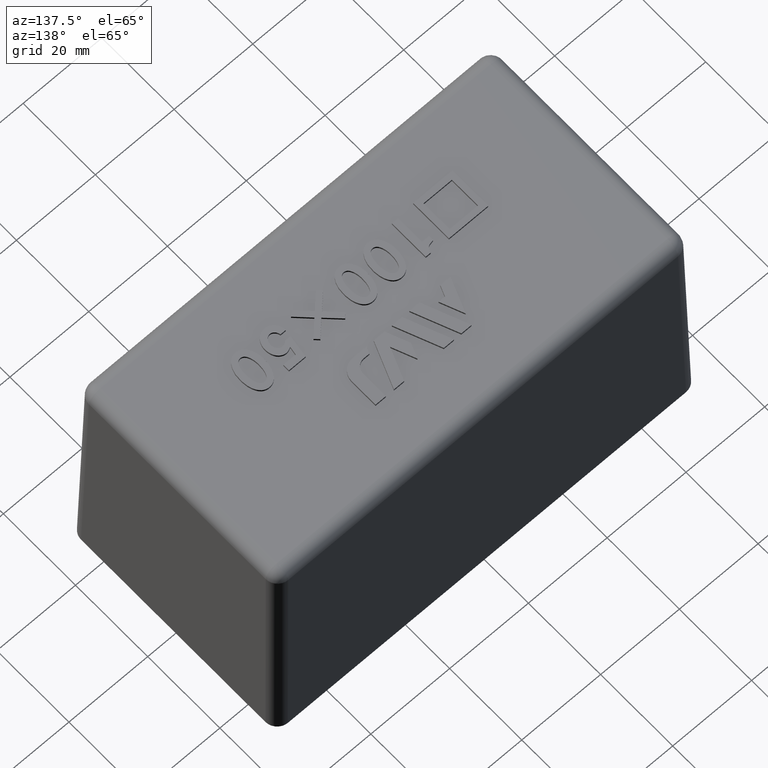
[diagram: clean part render]
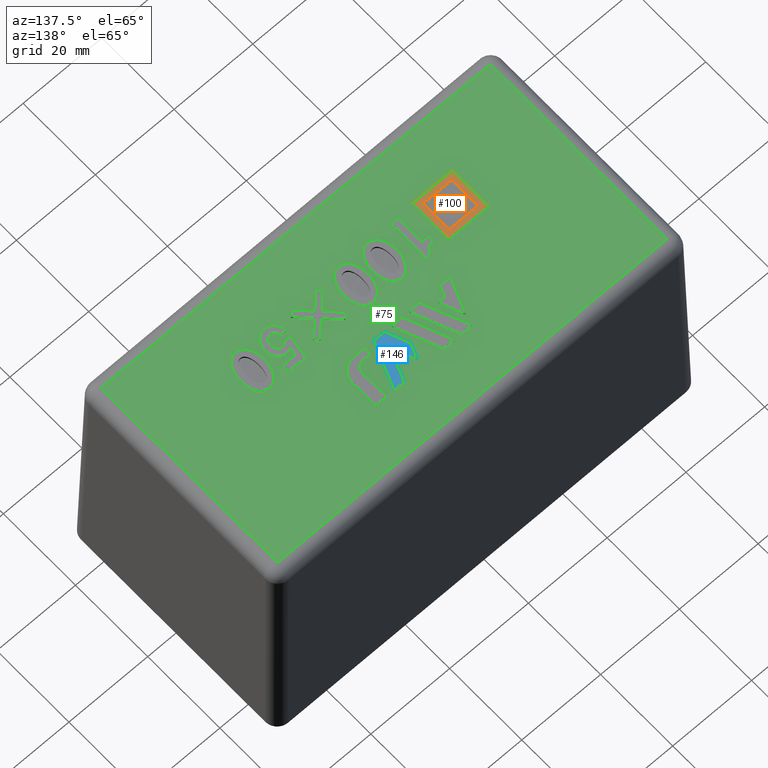
[diagram: same view with three faces highlighted in distinct colors, each labeled with its STEP entity id]
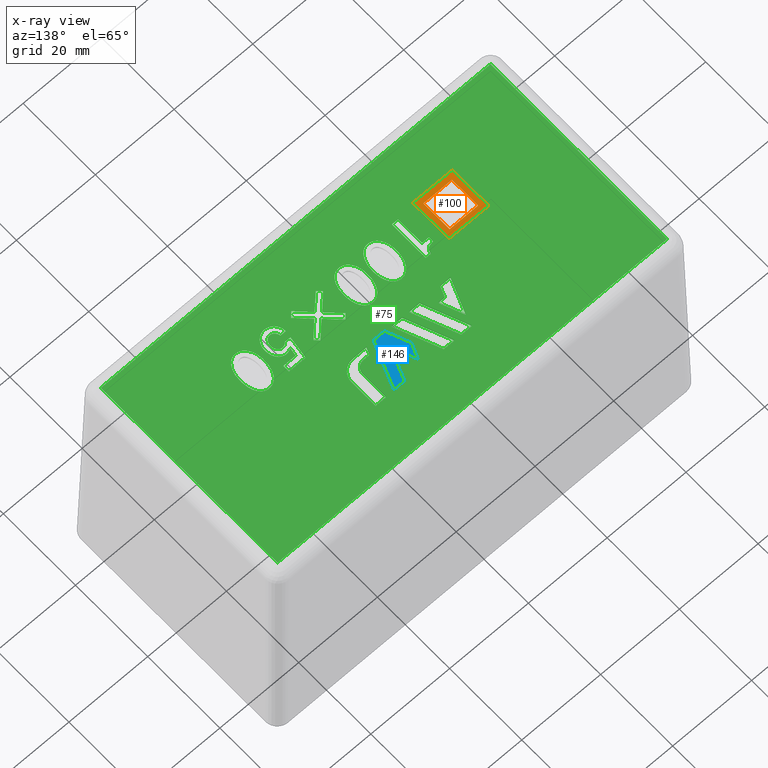
[diagram: x-ray of the same camera — body ghosted, the three highlighted faces saturated]
A machine part, auxiliary view with three faces highlighted in distinct colors.
The next image is the same camera in x-ray (body ghosted, the three faces saturated) — at least one of them is partly hidden behind the body in this view.
Their STEP definitions:

[orange] entity #100 — the highlighted planar face has unit normal (0, 0, 1).
#100 = ADVANCED_FACE( '', ( #259, #260 ), #261, .T. );
#259 = FACE_OUTER_BOUND( '', #518, .T. );
#260 = FACE_BOUND( '', #519, .T. );
#261 = PLANE( '', #520 );
#518 = EDGE_LOOP( '', ( #1037, #1038, #1039, #1040 ) );
#519 = EDGE_LOOP( '', ( #1041, #1042, #1043, #1044 ) );
#520 = AXIS2_PLACEMENT_3D( '', #1045, #1046, #1047 );
#1037 = ORIENTED_EDGE( '', *, *, #1804, .F. );
#1038 = ORIENTED_EDGE( '', *, *, #1805, .F. );
#1039 = ORIENTED_EDGE( '', *, *, #1806, .F. );
#1040 = ORIENTED_EDGE( '', *, *, #1807, .F. );
#1041 = ORIENTED_EDGE( '', *, *, #1808, .F. );
#1042 = ORIENTED_EDGE( '', *, *, #1809, .F. );
#1043 = ORIENTED_EDGE( '', *, *, #1810, .F. );
#1044 = ORIENTED_EDGE( '', *, *, #1811, .F. );
#1045 = CARTESIAN_POINT( '', ( -29.2361505681818, -8.00000000000001, 63.5000000000000 ) );
#1046 = DIRECTION( '', ( 0.000000000000000, 0.000000000000000, 1.00000000000000 ) );
#1047 = DIRECTION( '', ( 0.000000000000000, -1.00000000000000, 0.000000000000000 ) );
#1804 = EDGE_CURVE( '', #2172, #2173, #2174, .T. );
#1805 = EDGE_CURVE( '', #2175, #2172, #2176, .T. );
#1806 = EDGE_CURVE( '', #2177, #2175, #2178, .T. );
#1807 = EDGE_CURVE( '', #2173, #2177, #2179, .T. );
#1808 = EDGE_CURVE( '', #2180, #2181, #2182, .T. );
#1809 = EDGE_CURVE( '', #2183, #2180, #2184, .T. );
#1810 = EDGE_CURVE( '', #2185, #2183, #2186, .T. );
#1811 = EDGE_CURVE( '', #2181, #2185, #2187, .T. );
#2172 = VERTEX_POINT( '', #3003 );
#2173 = VERTEX_POINT( '', #3004 );
#2174 = B_SPLINE_CURVE_WITH_KNOTS( '', 2, ( #3005, #3006, #3007 ), .UNSPECIFIED., .F., .F., ( 3, 3 ), ( 0.000000000000000, 1.00000000000000 ), .UNSPECIFIED. );
#2175 = VERTEX_POINT( '', #3008 );
#2176 = B_SPLINE_CURVE_WITH_KNOTS( '', 2, ( #3009, #3010, #3011 ), .UNSPECIFIED., .F., .F., ( 3, 3 ), ( 3.00000000000000, 4.00000000000000 ), .UNSPECIFIED. );
#2177 = VERTEX_POINT( '', #3012 );
#2178 = B_SPLINE_CURVE_WITH_KNOTS( '', 2, ( #3013, #3014, #3015 ), .UNSPECIFIED., .F., .F., ( 3, 3 ), ( 2.00000000000000, 3.00000000000000 ), .UNSPECIFIED. );
#2179 = B_SPLINE_CURVE_WITH_KNOTS( '', 2, ( #3016, #3017, #3018 ), .UNSPECIFIED., .F., .F., ( 3, 3 ), ( 1.00000000000000, 2.00000000000000 ), .UNSPECIFIED. );
#2180 = VERTEX_POINT( '', #3019 );
#2181 = VERTEX_POINT( '', #3020 );
#2182 = B_SPLINE_CURVE_WITH_KNOTS( '', 2, ( #3021, #3022, #3023 ), .UNSPECIFIED., .F., .F., ( 3, 3 ), ( 0.000000000000000, 1.00000000000000 ), .UNSPECIFIED. );
#2183 = VERTEX_POINT( '', #3024 );
#2184 = B_SPLINE_CURVE_WITH_KNOTS( '', 2, ( #3025, #3026, #3027 ), .UNSPECIFIED., .F., .F., ( 3, 3 ), ( 3.00000000000000, 4.00000000000000 ), .UNSPECIFIED. );
#2185 = VERTEX_POINT( '', #3028 );
#2186 = B_SPLINE_CURVE_WITH_KNOTS( '', 2, ( #3029, #3030, #3031 ), .UNSPECIFIED., .F., .F., ( 3, 3 ), ( 2.00000000000000, 3.00000000000000 ), .UNSPECIFIED. );
#2187 = B_SPLINE_CURVE_WITH_KNOTS( '', 2, ( #3032, #3033, #3034 ), .UNSPECIFIED., .F., .F., ( 3, 3 ), ( 1.00000000000000, 2.00000000000000 ), .UNSPECIFIED. );
#3003 = CARTESIAN_POINT( '', ( -29.2361505681818, -12.9545454545455, 63.5000000000000 ) );
#3004 = CARTESIAN_POINT( '', ( -29.2361505681818, -3.04545454545455, 63.5000000000000 ) );
#3005 = CARTESIAN_POINT( '', ( -29.2361505681818, -12.9545454545455, 63.5000000000000 ) );
#3006 = CARTESIAN_POINT( '', ( -29.2361505681818, -8.00000000000001, 63.5000000000000 ) );
#3007 = CARTESIAN_POINT( '', ( -29.2361505681818, -3.04545454545455, 63.5000000000000 ) );
#3008 = CARTESIAN_POINT( '', ( -19.2816051136364, -12.9545454545455, 63.5000000000000 ) );
#3009 = CARTESIAN_POINT( '', ( -19.2816051136364, -12.9545454545455, 63.5000000000000 ) );
#3010 = CARTESIAN_POINT( '', ( -24.2588778409091, -12.9545454545455, 63.5000000000000 ) );
#3011 = CARTESIAN_POINT( '', ( -29.2361505681818, -12.9545454545455, 63.5000000000000 ) );
#3012 = CARTESIAN_POINT( '', ( -19.2816051136364, -3.04545454545455, 63.5000000000000 ) );
#3013 = CARTESIAN_POINT( '', ( -19.2816051136364, -3.04545454545455, 63.5000000000000 ) );
#3014 = CARTESIAN_POINT( '', ( -19.2816051136364, -8.00000000000001, 63.5000000000000 ) );
#3015 = CARTESIAN_POINT( '', ( -19.2816051136364, -12.9545454545455, 63.5000000000000 ) );
#3016 = CARTESIAN_POINT( '', ( -29.2361505681818, -3.04545454545455, 63.5000000000000 ) );
#3017 = CARTESIAN_POINT( '', ( -24.2588778409091, -3.04545454545455, 63.5000000000000 ) );
#3018 = CARTESIAN_POINT( '', ( -19.2816051136364, -3.04545454545455, 63.5000000000000 ) );
#3019 = CARTESIAN_POINT( '', ( -27.8725142045455, -11.5909090909091, 63.5000000000000 ) );
#3020 = CARTESIAN_POINT( '', ( -20.6452414772727, -11.5909090909091, 63.5000000000000 ) );
#3021 = CARTESIAN_POINT( '', ( -27.8725142045455, -11.5909090909091, 63.5000000000000 ) );
#3022 = CARTESIAN_POINT( '', ( -24.2588778409091, -11.5909090909091, 63.5000000000000 ) );
#3023 = CARTESIAN_POINT( '', ( -20.6452414772727, -11.5909090909091, 63.5000000000000 ) );
#3024 = CARTESIAN_POINT( '', ( -27.8725142045455, -4.36363636363637, 63.5000000000000 ) );
#3025 = CARTESIAN_POINT( '', ( -27.8725142045455, -4.36363636363637, 63.5000000000000 ) );
#3026 = CARTESIAN_POINT( '', ( -27.8725142045455, -7.97727272727274, 63.5000000000000 ) );
#3027 = CARTESIAN_POINT( '', ( -27.8725142045455, -11.5909090909091, 63.5000000000000 ) );
#3028 = CARTESIAN_POINT( '', ( -20.6452414772727, -4.36363636363637, 63.5000000000000 ) );
#3029 = CARTESIAN_POINT( '', ( -20.6452414772727, -4.36363636363637, 63.5000000000000 ) );
#3030 = CARTESIAN_POINT( '', ( -24.2588778409091, -4.36363636363637, 63.5000000000000 ) );
#3031 = CARTESIAN_POINT( '', ( -27.8725142045455, -4.36363636363637, 63.5000000000000 ) );
#3032 = CARTESIAN_POINT( '', ( -20.6452414772727, -11.5909090909091, 63.5000000000000 ) );
#3033 = CARTESIAN_POINT( '', ( -20.6452414772727, -7.97727272727274, 63.5000000000000 ) );
#3034 = CARTESIAN_POINT( '', ( -20.6452414772727, -4.36363636363637, 63.5000000000000 ) );

[blue] entity #146 — the highlighted planar face has unit normal (0, 0, 1).
#146 = ADVANCED_FACE( '', ( #353 ), #354, .T. );
#353 = FACE_OUTER_BOUND( '', #612, .T. );
#354 = PLANE( '', #613 );
#612 = EDGE_LOOP( '', ( #1364, #1365, #1366, #1367, #1368, #1369, #1370 ) );
#613 = AXIS2_PLACEMENT_3D( '', #1371, #1372, #1373 );
#1364 = ORIENTED_EDGE( '', *, *, #1886, .T. );
#1365 = ORIENTED_EDGE( '', *, *, #1887, .T. );
#1366 = ORIENTED_EDGE( '', *, *, #1888, .T. );
#1367 = ORIENTED_EDGE( '', *, *, #1889, .T. );
#1368 = ORIENTED_EDGE( '', *, *, #1890, .T. );
#1369 = ORIENTED_EDGE( '', *, *, #1891, .T. );
#1370 = ORIENTED_EDGE( '', *, *, #1892, .T. );
#1371 = CARTESIAN_POINT( '', ( 353.089384081979, 134.514199886285, 63.4995000000000 ) );
#1372 = DIRECTION( '', ( 0.000000000000000, 6.12303176911189E-017, 1.00000000000000 ) );
#1373 = DIRECTION( '', ( -1.00000000000000, 0.000000000000000, 0.000000000000000 ) );
#1886 = EDGE_CURVE( '', #2295, #2296, #2297, .T. );
#1887 = EDGE_CURVE( '', #2296, #2298, #2299, .T. );
#1888 = EDGE_CURVE( '', #2298, #2300, #2301, .T. );
#1889 = EDGE_CURVE( '', #2300, #2302, #2303, .T. );
#1890 = EDGE_CURVE( '', #2302, #2304, #2305, .T. );
#1891 = EDGE_CURVE( '', #2304, #2306, #2307, .T. );
#1892 = EDGE_CURVE( '', #2306, #2295, #2308, .T. );
#2295 = VERTEX_POINT( '', #3200 );
#2296 = VERTEX_POINT( '', #3201 );
#2297 = LINE( '', #3202, #3203 );
#2298 = VERTEX_POINT( '', #3204 );
#2299 = LINE( '', #3205, #3206 );
#2300 = VERTEX_POINT( '', #3207 );
#2301 = LINE( '', #3208, #3209 );
#2302 = VERTEX_POINT( '', #3210 );
#2303 = LINE( '', #3211, #3212 );
#2304 = VERTEX_POINT( '', #3213 );
#2305 = LINE( '', #3214, #3215 );
#2306 = VERTEX_POINT( '', #3216 );
#2307 = LINE( '', #3217, #3218 );
#2308 = LINE( '', #3219, #3220 );
#3200 = CARTESIAN_POINT( '', ( 5.34956110716499, 2.99499875000001, 63.4995000000000 ) );
#3201 = CARTESIAN_POINT( '', ( 9.39070366533001, 12.9976783770600, 63.4995000000000 ) );
#3202 = CARTESIAN_POINT( '', ( 5.34956110716499, 2.99499875000001, 63.4995000000000 ) );
#3203 = VECTOR( '', #3526, 1000.00000000000 );
#3204 = CARTESIAN_POINT( '', ( 6.80590969755501, 12.9976783770600, 63.4995000000000 ) );
#3205 = CARTESIAN_POINT( '', ( 9.39070366533001, 12.9976783770600, 63.4995000000000 ) );
#3206 = VECTOR( '', #3527, 1000.00000000000 );
#3207 = CARTESIAN_POINT( '', ( 3.98309344144501, 6.01178327344252, 63.4995000000000 ) );
#3208 = CARTESIAN_POINT( '', ( 6.80590969755501, 12.9976783770600, 63.4995000000000 ) );
#3209 = VECTOR( '', #3528, 1000.00000000000 );
#3210 = CARTESIAN_POINT( '', ( 1.85028000433001, 11.2904379717875, 63.4995000000000 ) );
#3211 = CARTESIAN_POINT( '', ( 3.98309344144501, 6.01178327344252, 63.4995000000000 ) );
#3212 = VECTOR( '', #3529, 1000.00000000000 );
#3213 = CARTESIAN_POINT( '', ( 0.557883020442516, 8.09108323719253, 63.4995000000000 ) );
#3214 = CARTESIAN_POINT( '', ( 1.85028000433001, 11.2904379717875, 63.4995000000000 ) );
#3215 = VECTOR( '', #3530, 1000.00000000000 );
#3216 = CARTESIAN_POINT( '', ( 2.61719412142251, 2.99499875000001, 63.4995000000000 ) );
#3217 = CARTESIAN_POINT( '', ( 0.557883020442516, 8.09108323719253, 63.4995000000000 ) );
#3218 = VECTOR( '', #3531, 1000.00000000000 );
#3219 = CARTESIAN_POINT( '', ( 2.61719412142251, 2.99499875000001, 63.4995000000000 ) );
#3220 = VECTOR( '', #3532, 1000.00000000000 );
#3526 = DIRECTION( '', ( 0.374590469627020, 0.927190368837278, -5.67721608440522E-017 ) );
#3527 = DIRECTION( '', ( -1.00000000000000, 0.000000000000000, 0.000000000000000 ) );
#3528 = DIRECTION( '', ( -0.374644407000048, -0.927168575990139, 5.67708264610985E-017 ) );
#3529 = DIRECTION( '', ( -0.374621466961798, 0.927177845125405, -5.67713940131956E-017 ) );
#3530 = DIRECTION( '', ( -0.374550228315492, -0.927206625552694, 5.67731562479017E-017 ) );
#3531 = DIRECTION( '', ( 0.374662791989133, -0.927161146888127, 5.67703715748221E-017 ) );
#3532 = DIRECTION( '', ( 1.00000000000000, 5.55111512312578E-017, -3.39896542528966E-033 ) );

[green] entity #75 — the highlighted planar face has unit normal (0, 0, 1).
#75 = ADVANCED_FACE( '', ( #190, #191, #192, #193, #194, #195, #196, #197, #198, #199, #200, #201, #202 ), #203, .T. );
#190 = FACE_BOUND( '', #441, .T. );
#191 = FACE_BOUND( '', #442, .T. );
#192 = FACE_BOUND( '', #443, .T. );
#193 = FACE_BOUND( '', #444, .T. );
#194 = FACE_BOUND( '', #445, .T. );
#195 = FACE_BOUND( '', #446, .T. );
#196 = FACE_BOUND( '', #447, .T. );
#197 = FACE_BOUND( '', #448, .T. );
#198 = FACE_OUTER_BOUND( '', #449, .T. );
#199 = FACE_BOUND( '', #450, .T. );
#200 = FACE_BOUND( '', #451, .T. );
#201 = FACE_BOUND( '', #452, .T. );
#202 = FACE_BOUND( '', #453, .T. );
#203 = PLANE( '', #454 );
#441 = EDGE_LOOP( '', ( #702, #703, #704, #705, #706 ) );
#442 = EDGE_LOOP( '', ( #707, #708, #709, #710 ) );
#443 = EDGE_LOOP( '', ( #711, #712, #713, #714 ) );
#444 = EDGE_LOOP( '', ( #715, #716, #717, #718, #719, #720, #721 ) );
#445 = EDGE_LOOP( '', ( #722, #723, #724, #725, #726, #727, #728, #729 ) );
#446 = EDGE_LOOP( '', ( #730, #731, #732, #733, #734, #735, #736, #737, #738, #739 ) );
#447 = EDGE_LOOP( '', ( #740 ) );
#448 = EDGE_LOOP( '', ( #741, #742, #743, #744, #745, #746, #747 ) );
#449 = EDGE_LOOP( '', ( #748, #749, #750, #751 ) );
#450 = EDGE_LOOP( '', ( #752, #753, #754, #755 ) );
#451 = EDGE_LOOP( '', ( #756 ) );
#452 = EDGE_LOOP( '', ( #757, #758, #759, #760, #761, #762, #763, #764, #765, #766, #767, #768 ) );
#453 = EDGE_LOOP( '', ( #769 ) );
#454 = AXIS2_PLACEMENT_3D( '', #770, #771, #772 );
#702 = ORIENTED_EDGE( '', *, *, #1686, .F. );
#703 = ORIENTED_EDGE( '', *, *, #1687, .F. );
#704 = ORIENTED_EDGE( '', *, *, #1688, .F. );
#705 = ORIENTED_EDGE( '', *, *, #1689, .F. );
#706 = ORIENTED_EDGE( '', *, *, #1690, .F. );
#707 = ORIENTED_EDGE( '', *, *, #1691, .F. );
#708 = ORIENTED_EDGE( '', *, *, #1692, .F. );
#709 = ORIENTED_EDGE( '', *, *, #1693, .F. );
#710 = ORIENTED_EDGE( '', *, *, #1694, .F. );
#711 = ORIENTED_EDGE( '', *, *, #1695, .F. );
#712 = ORIENTED_EDGE( '', *, *, #1696, .F. );
#713 = ORIENTED_EDGE( '', *, *, #1697, .F. );
#714 = ORIENTED_EDGE( '', *, *, #1698, .F. );
#715 = ORIENTED_EDGE( '', *, *, #1699, .F. );
#716 = ORIENTED_EDGE( '', *, *, #1700, .F. );
#717 = ORIENTED_EDGE( '', *, *, #1701, .F. );
#718 = ORIENTED_EDGE( '', *, *, #1702, .F. );
#719 = ORIENTED_EDGE( '', *, *, #1703, .F. );
#720 = ORIENTED_EDGE( '', *, *, #1704, .F. );
#721 = ORIENTED_EDGE( '', *, *, #1705, .F. );
#722 = ORIENTED_EDGE( '', *, *, #1706, .F. );
#723 = ORIENTED_EDGE( '', *, *, #1707, .F. );
#724 = ORIENTED_EDGE( '', *, *, #1708, .F. );
#725 = ORIENTED_EDGE( '', *, *, #1709, .F. );
#726 = ORIENTED_EDGE( '', *, *, #1710, .F. );
#727 = ORIENTED_EDGE( '', *, *, #1711, .F. );
#728 = ORIENTED_EDGE( '', *, *, #1712, .F. );
#729 = ORIENTED_EDGE( '', *, *, #1713, .F. );
#730 = ORIENTED_EDGE( '', *, *, #1714, .T. );
#731 = ORIENTED_EDGE( '', *, *, #1715, .T. );
#732 = ORIENTED_EDGE( '', *, *, #1716, .T. );
#733 = ORIENTED_EDGE( '', *, *, #1717, .T. );
#734 = ORIENTED_EDGE( '', *, *, #1718, .T. );
#735 = ORIENTED_EDGE( '', *, *, #1719, .T. );
#736 = ORIENTED_EDGE( '', *, *, #1720, .T. );
#737 = ORIENTED_EDGE( '', *, *, #1721, .T. );
#738 = ORIENTED_EDGE( '', *, *, #1722, .T. );
#739 = ORIENTED_EDGE( '', *, *, #1723, .T. );
#740 = ORIENTED_EDGE( '', *, *, #1724, .T. );
#741 = ORIENTED_EDGE( '', *, *, #1725, .T. );
#742 = ORIENTED_EDGE( '', *, *, #1726, .T. );
#743 = ORIENTED_EDGE( '', *, *, #1727, .T. );
#744 = ORIENTED_EDGE( '', *, *, #1728, .T. );
#745 = ORIENTED_EDGE( '', *, *, #1729, .T. );
#746 = ORIENTED_EDGE( '', *, *, #1730, .T. );
#747 = ORIENTED_EDGE( '', *, *, #1731, .T. );
#748 = ORIENTED_EDGE( '', *, *, #1732, .T. );
#749 = ORIENTED_EDGE( '', *, *, #1733, .T. );
#750 = ORIENTED_EDGE( '', *, *, #1734, .T. );
#751 = ORIENTED_EDGE( '', *, *, #1735, .T. );
#752 = ORIENTED_EDGE( '', *, *, #1736, .T. );
#753 = ORIENTED_EDGE( '', *, *, #1737, .T. );
#754 = ORIENTED_EDGE( '', *, *, #1738, .T. );
#755 = ORIENTED_EDGE( '', *, *, #1739, .T. );
#756 = ORIENTED_EDGE( '', *, *, #1740, .T. );
#757 = ORIENTED_EDGE( '', *, *, #1741, .T. );
#758 = ORIENTED_EDGE( '', *, *, #1742, .T. );
#759 = ORIENTED_EDGE( '', *, *, #1743, .T. );
#760 = ORIENTED_EDGE( '', *, *, #1744, .T. );
#761 = ORIENTED_EDGE( '', *, *, #1745, .T. );
#762 = ORIENTED_EDGE( '', *, *, #1746, .T. );
#763 = ORIENTED_EDGE( '', *, *, #1747, .T. );
#764 = ORIENTED_EDGE( '', *, *, #1748, .T. );
#765 = ORIENTED_EDGE( '', *, *, #1749, .T. );
#766 = ORIENTED_EDGE( '', *, *, #1750, .T. );
#767 = ORIENTED_EDGE( '', *, *, #1751, .T. );
#768 = ORIENTED_EDGE( '', *, *, #1752, .T. );
#769 = ORIENTED_EDGE( '', *, *, #1753, .T. );
#770 = CARTESIAN_POINT( '', ( -53.0000000000000, -28.0000000000000, 63.0000000000000 ) );
#771 = DIRECTION( '', ( 0.000000000000000, 0.000000000000000, 1.00000000000000 ) );
#772 = DIRECTION( '', ( 0.000000000000000, -1.00000000000000, 0.000000000000000 ) );
#1686 = EDGE_CURVE( '', #1949, #1950, #1951, .T. );
#1687 = EDGE_CURVE( '', #1952, #1949, #1953, .T. );
#1688 = EDGE_CURVE( '', #1954, #1952, #1955, .T. );
#1689 = EDGE_CURVE( '', #1956, #1954, #1957, .T. );
#1690 = EDGE_CURVE( '', #1950, #1956, #1958, .T. );
#1691 = EDGE_CURVE( '', #1959, #1960, #1961, .T. );
#1692 = EDGE_CURVE( '', #1962, #1959, #1963, .T. );
#1693 = EDGE_CURVE( '', #1964, #1962, #1965, .T. );
#1694 = EDGE_CURVE( '', #1960, #1964, #1966, .T. );
#1695 = EDGE_CURVE( '', #1967, #1968, #1969, .T. );
#1696 = EDGE_CURVE( '', #1970, #1967, #1971, .T. );
#1697 = EDGE_CURVE( '', #1972, #1970, #1973, .T. );
#1698 = EDGE_CURVE( '', #1968, #1972, #1974, .T. );
#1699 = EDGE_CURVE( '', #1975, #1976, #1977, .T. );
#1700 = EDGE_CURVE( '', #1978, #1975, #1979, .T. );
#1701 = EDGE_CURVE( '', #1980, #1978, #1981, .T. );
#1702 = EDGE_CURVE( '', #1982, #1980, #1983, .T. );
#1703 = EDGE_CURVE( '', #1984, #1982, #1985, .T. );
#1704 = EDGE_CURVE( '', #1986, #1984, #1987, .T. );
#1705 = EDGE_CURVE( '', #1976, #1986, #1988, .T. );
#1706 = EDGE_CURVE( '', #1989, #1990, #1991, .T. );
#1707 = EDGE_CURVE( '', #1992, #1989, #1993, .T. );
#1708 = EDGE_CURVE( '', #1994, #1992, #1995, .T. );
#1709 = EDGE_CURVE( '', #1996, #1994, #1997, .T. );
#1710 = EDGE_CURVE( '', #1998, #1996, #1999, .T. );
#1711 = EDGE_CURVE( '', #2000, #1998, #2001, .T. );
#1712 = EDGE_CURVE( '', #2002, #2000, #2003, .T. );
#1713 = EDGE_CURVE( '', #1990, #2002, #2004, .T. );
#1714 = EDGE_CURVE( '', #2005, #2006, #2007, .T. );
#1715 = EDGE_CURVE( '', #2006, #2008, #2009, .T. );
#1716 = EDGE_CURVE( '', #2008, #2010, #2011, .T. );
#1717 = EDGE_CURVE( '', #2010, #2012, #2013, .T. );
#1718 = EDGE_CURVE( '', #2012, #2014, #2015, .T. );
#1719 = EDGE_CURVE( '', #2014, #2016, #2017, .T. );
#1720 = EDGE_CURVE( '', #2016, #2018, #2019, .T. );
#1721 = EDGE_CURVE( '', #2018, #2020, #2021, .T. );
#1722 = EDGE_CURVE( '', #2020, #2022, #2023, .T. );
#1723 = EDGE_CURVE( '', #2022, #2005, #2024, .T. );
#1724 = EDGE_CURVE( '', #2025, #2025, #2026, .T. );
#1725 = EDGE_CURVE( '', #2027, #2028, #2029, .T. );
#1726 = EDGE_CURVE( '', #2028, #2030, #2031, .T. );
#1727 = EDGE_CURVE( '', #2030, #2032, #2033, .T. );
#1728 = EDGE_CURVE( '', #2032, #2034, #2035, .T. );
#1729 = EDGE_CURVE( '', #2034, #2036, #2037, .T. );
#1730 = EDGE_CURVE( '', #2036, #2038, #2039, .T. );
#1731 = EDGE_CURVE( '', #2038, #2027, #2040, .T. );
#1732 = EDGE_CURVE( '', #2041, #2042, #2043, .F. );
#1733 = EDGE_CURVE( '', #2042, #2044, #2045, .F. );
#1734 = EDGE_CURVE( '', #2044, #2046, #2047, .F. );
#1735 = EDGE_CURVE( '', #2046, #2041, #2048, .F. );
#1736 = EDGE_CURVE( '', #2049, #2050, #2051, .T. );
#1737 = EDGE_CURVE( '', #2050, #2052, #2053, .T. );
#1738 = EDGE_CURVE( '', #2052, #2054, #2055, .T. );
#1739 = EDGE_CURVE( '', #2054, #2049, #2056, .T. );
#1740 = EDGE_CURVE( '', #2057, #2057, #2058, .T. );
#1741 = EDGE_CURVE( '', #2059, #2060, #2061, .T. );
#1742 = EDGE_CURVE( '', #2060, #2062, #2063, .T. );
#1743 = EDGE_CURVE( '', #2062, #2064, #2065, .T. );
#1744 = EDGE_CURVE( '', #2064, #2066, #2067, .T. );
#1745 = EDGE_CURVE( '', #2066, #2068, #2069, .T. );
#1746 = EDGE_CURVE( '', #2068, #2070, #2071, .T. );
#1747 = EDGE_CURVE( '', #2070, #2072, #2073, .T. );
#1748 = EDGE_CURVE( '', #2072, #2074, #2075, .T. );
#1749 = EDGE_CURVE( '', #2074, #2076, #2077, .T. );
#1750 = EDGE_CURVE( '', #2076, #2078, #2079, .T. );
#1751 = EDGE_CURVE( '', #2078, #2080, #2081, .T. );
#1752 = EDGE_CURVE( '', #2080, #2059, #2082, .T. );
#1753 = EDGE_CURVE( '', #2083, #2083, #2084, .T. );
#1949 = VERTEX_POINT( '', #2386 );
#1950 = VERTEX_POINT( '', #2387 );
#1951 = LINE( '', #2388, #2389 );
#1952 = VERTEX_POINT( '', #2390 );
#1953 = LINE( '', #2391, #2392 );
#1954 = VERTEX_POINT( '', #2393 );
#1955 = LINE( '', #2394, #2395 );
#1956 = VERTEX_POINT( '', #2396 );
#1957 = LINE( '', #2397, #2398 );
#1958 = LINE( '', #2399, #2400 );
#1959 = VERTEX_POINT( '', #2401 );
#1960 = VERTEX_POINT( '', #2402 );
#1961 = LINE( '', #2403, #2404 );
#1962 = VERTEX_POINT( '', #2405 );
#1963 = LINE( '', #2406, #2407 );
#1964 = VERTEX_POINT( '', #2408 );
#1965 = LINE( '', #2409, #2410 );
#1966 = LINE( '', #2411, #2412 );
#1967 = VERTEX_POINT( '', #2413 );
#1968 = VERTEX_POINT( '', #2414 );
#1969 = LINE( '', #2415, #2416 );
#1970 = VERTEX_POINT( '', #2417 );
#1971 = LINE( '', #2418, #2419 );
#1972 = VERTEX_POINT( '', #2420 );
#1973 = LINE( '', #2421, #2422 );
#1974 = LINE( '', #2423, #2424 );
#1975 = VERTEX_POINT( '', #2425 );
#1976 = VERTEX_POINT( '', #2426 );
#1977 = LINE( '', #2427, #2428 );
#1978 = VERTEX_POINT( '', #2429 );
#1979 = LINE( '', #2430, #2431 );
#1980 = VERTEX_POINT( '', #2432 );
#1981 = LINE( '', #2433, #2434 );
#1982 = VERTEX_POINT( '', #2435 );
#1983 = LINE( '', #2436, #2437 );
#1984 = VERTEX_POINT( '', #2438 );
#1985 = LINE( '', #2439, #2440 );
#1986 = VERTEX_POINT( '', #2441 );
#1987 = LINE( '', #2442, #2443 );
#1988 = LINE( '', #2444, #2445 );
#1989 = VERTEX_POINT( '', #2446 );
#1990 = VERTEX_POINT( '', #2447 );
#1991 = LINE( '', #2448, #2449 );
#1992 = VERTEX_POINT( '', #2450 );
#1993 = LINE( '', #2451, #2452 );
#1994 = VERTEX_POINT( '', #2453 );
#1995 = LINE( '', #2454, #2455 );
#1996 = VERTEX_POINT( '', #2456 );
#1997 = CIRCLE( '', #2457, 3.33666750000000 );
#1998 = VERTEX_POINT( '', #2458 );
#1999 = LINE( '', #2459, #2460 );
#2000 = VERTEX_POINT( '', #2461 );
#2001 = LINE( '', #2462, #2463 );
#2002 = VERTEX_POINT( '', #2464 );
#2003 = LINE( '', #2465, #2466 );
#2004 = CIRCLE( '', #2467, 2.22444500000000 );
#2005 = VERTEX_POINT( '', #2468 );
#2006 = VERTEX_POINT( '', #2469 );
#2007 = B_SPLINE_CURVE_WITH_KNOTS( '', 2, ( #2470, #2471, #2472, #2473, #2474, #2475, #2476, #2477, #2478, #2479, #2480, #2481, #2482 ), .UNSPECIFIED., .F., .F., ( 3, 2, 2, 2, 2, 2, 3 ), ( 14.0000000000000, 15.0000000000000, 16.0000000000000, 17.0000000000000, 18.0000000000000, 19.0000000000000, 20.0000000000000 ), .UNSPECIFIED. );
#2008 = VERTEX_POINT( '', #2483 );
#2009 = B_SPLINE_CURVE_WITH_KNOTS( '', 2, ( #2484, #2485, #2486 ), .UNSPECIFIED., .F., .F., ( 3, 3 ), ( 0.000000000000000, 1.00000000000000 ), .UNSPECIFIED. );
#2010 = VERTEX_POINT( '', #2487 );
#2011 = B_SPLINE_CURVE_WITH_KNOTS( '', 2, ( #2488, #2489, #2490 ), .UNSPECIFIED., .F., .F., ( 3, 3 ), ( 1.00000000000000, 2.00000000000000 ), .UNSPECIFIED. );
#2012 = VERTEX_POINT( '', #2491 );
#2013 = B_SPLINE_CURVE_WITH_KNOTS( '', 2, ( #2492, #2493, #2494, #2495, #2496, #2497, #2498, #2499, #2500, #2501, #2502, #2503, #2504 ), .UNSPECIFIED., .F., .F., ( 3, 2, 2, 2, 2, 2, 3 ), ( 2.00000000000000, 3.00000000000000, 4.00000000000000, 5.00000000000000, 6.00000000000000, 7.00000000000000, 8.00000000000000 ), .UNSPECIFIED. );
#2014 = VERTEX_POINT( '', #2505 );
#2015 = B_SPLINE_CURVE_WITH_KNOTS( '', 2, ( #2506, #2507, #2508 ), .UNSPECIFIED., .F., .F., ( 3, 3 ), ( 8.00000000000000, 9.00000000000000 ), .UNSPECIFIED. );
#2016 = VERTEX_POINT( '', #2509 );
#2017 = B_SPLINE_CURVE_WITH_KNOTS( '', 2, ( #2510, #2511, #2512 ), .UNSPECIFIED., .F., .F., ( 3, 3 ), ( 9.00000000000000, 10.0000000000000 ), .UNSPECIFIED. );
#2018 = VERTEX_POINT( '', #2513 );
#2019 = B_SPLINE_CURVE_WITH_KNOTS( '', 2, ( #2514, #2515, #2516 ), .UNSPECIFIED., .F., .F., ( 3, 3 ), ( 10.0000000000000, 11.0000000000000 ), .UNSPECIFIED. );
#2020 = VERTEX_POINT( '', #2517 );
#2021 = B_SPLINE_CURVE_WITH_KNOTS( '', 2, ( #2518, #2519, #2520 ), .UNSPECIFIED., .F., .F., ( 3, 3 ), ( 11.0000000000000, 12.0000000000000 ), .UNSPECIFIED. );
#2022 = VERTEX_POINT( '', #2521 );
#2023 = B_SPLINE_CURVE_WITH_KNOTS( '', 2, ( #2522, #2523, #2524 ), .UNSPECIFIED., .F., .F., ( 3, 3 ), ( 12.0000000000000, 13.0000000000000 ), .UNSPECIFIED. );
#2024 = B_SPLINE_CURVE_WITH_KNOTS( '', 2, ( #2525, #2526, #2527 ), .UNSPECIFIED., .F., .F., ( 3, 3 ), ( 13.0000000000000, 14.0000000000000 ), .UNSPECIFIED. );
#2025 = VERTEX_POINT( '', #2528 );
#2026 = B_SPLINE_CURVE_WITH_KNOTS( '', 2, ( #2529, #2530, #2531, #2532, #2533, #2534, #2535, #2536, #2537, #2538, #2539, #2540, #2541, #2542, #2543, #2544, #2545 ), .UNSPECIFIED., .T., .F., ( 3, 2, 2, 2, 2, 2, 2, 2, 3 ), ( 0.000000000000000, 1.00000000000000, 2.00000000000000, 3.00000000000000, 4.00000000000000, 5.00000000000000, 6.00000000000000, 7.00000000000000, 8.00000000000000 ), .UNSPECIFIED. );
#2027 = VERTEX_POINT( '', #2546 );
#2028 = VERTEX_POINT( '', #2547 );
#2029 = B_SPLINE_CURVE_WITH_KNOTS( '', 2, ( #2548, #2549, #2550 ), .UNSPECIFIED., .F., .F., ( 3, 3 ), ( 7.00000000000000, 8.00000000000000 ), .UNSPECIFIED. );
#2030 = VERTEX_POINT( '', #2551 );
#2031 = B_SPLINE_CURVE_WITH_KNOTS( '', 2, ( #2552, #2553, #2554 ), .UNSPECIFIED., .F., .F., ( 3, 3 ), ( 0.000000000000000, 1.00000000000000 ), .UNSPECIFIED. );
#2032 = VERTEX_POINT( '', #2555 );
#2033 = B_SPLINE_CURVE_WITH_KNOTS( '', 2, ( #2556, #2557, #2558, #2559, #2560 ), .UNSPECIFIED., .F., .F., ( 3, 2, 3 ), ( 1.00000000000000, 2.00000000000000, 3.00000000000000 ), .UNSPECIFIED. );
#2034 = VERTEX_POINT( '', #2561 );
#2035 = B_SPLINE_CURVE_WITH_KNOTS( '', 2, ( #2562, #2563, #2564 ), .UNSPECIFIED., .F., .F., ( 3, 3 ), ( 3.00000000000000, 4.00000000000000 ), .UNSPECIFIED. );
#2036 = VERTEX_POINT( '', #2565 );
#2037 = B_SPLINE_CURVE_WITH_KNOTS( '', 2, ( #2566, #2567, #2568 ), .UNSPECIFIED., .F., .F., ( 3, 3 ), ( 4.00000000000000, 5.00000000000000 ), .UNSPECIFIED. );
#2038 = VERTEX_POINT( '', #2569 );
#2039 = B_SPLINE_CURVE_WITH_KNOTS( '', 2, ( #2570, #2571, #2572 ), .UNSPECIFIED., .F., .F., ( 3, 3 ), ( 5.00000000000000, 6.00000000000000 ), .UNSPECIFIED. );
#2040 = B_SPLINE_CURVE_WITH_KNOTS( '', 2, ( #2573, #2574, #2575 ), .UNSPECIFIED., .F., .F., ( 3, 3 ), ( 6.00000000000000, 7.00000000000000 ), .UNSPECIFIED. );
#2041 = VERTEX_POINT( '', #2576 );
#2042 = VERTEX_POINT( '', #2577 );
#2043 = LINE( '', #2578, #2579 );
#2044 = VERTEX_POINT( '', #2580 );
#2045 = LINE( '', #2581, #2582 );
#2046 = VERTEX_POINT( '', #2583 );
#2047 = LINE( '', #2584, #2585 );
#2048 = LINE( '', #2586, #2587 );
#2049 = VERTEX_POINT( '', #2588 );
#2050 = VERTEX_POINT( '', #2589 );
#2051 = B_SPLINE_CURVE_WITH_KNOTS( '', 2, ( #2590, #2591, #2592 ), .UNSPECIFIED., .F., .F., ( 3, 3 ), ( 3.00000000000000, 4.00000000000000 ), .UNSPECIFIED. );
#2052 = VERTEX_POINT( '', #2593 );
#2053 = B_SPLINE_CURVE_WITH_KNOTS( '', 2, ( #2594, #2595, #2596 ), .UNSPECIFIED., .F., .F., ( 3, 3 ), ( 0.000000000000000, 1.00000000000000 ), .UNSPECIFIED. );
#2054 = VERTEX_POINT( '', #2597 );
#2055 = B_SPLINE_CURVE_WITH_KNOTS( '', 2, ( #2598, #2599, #2600 ), .UNSPECIFIED., .F., .F., ( 3, 3 ), ( 1.00000000000000, 2.00000000000000 ), .UNSPECIFIED. );
#2056 = B_SPLINE_CURVE_WITH_KNOTS( '', 2, ( #2601, #2602, #2603 ), .UNSPECIFIED., .F., .F., ( 3, 3 ), ( 2.00000000000000, 3.00000000000000 ), .UNSPECIFIED. );
#2057 = VERTEX_POINT( '', #2604 );
#2058 = B_SPLINE_CURVE_WITH_KNOTS( '', 2, ( #2605, #2606, #2607, #2608, #2609, #2610, #2611, #2612, #2613, #2614, #2615, #2616, #2617, #2618, #2619, #2620, #2621 ), .UNSPECIFIED., .T., .F., ( 3, 2, 2, 2, 2, 2, 2, 2, 3 ), ( 0.000000000000000, 1.00000000000000, 2.00000000000000, 3.00000000000000, 4.00000000000000, 5.00000000000000, 6.00000000000000, 7.00000000000000, 8.00000000000000 ), .UNSPECIFIED. );
#2059 = VERTEX_POINT( '', #2622 );
#2060 = VERTEX_POINT( '', #2623 );
#2061 = B_SPLINE_CURVE_WITH_KNOTS( '', 2, ( #2624, #2625, #2626 ), .UNSPECIFIED., .F., .F., ( 3, 3 ), ( 11.0000000000000, 12.0000000000000 ), .UNSPECIFIED. );
#2062 = VERTEX_POINT( '', #2627 );
#2063 = B_SPLINE_CURVE_WITH_KNOTS( '', 2, ( #2628, #2629, #2630 ), .UNSPECIFIED., .F., .F., ( 3, 3 ), ( 0.000000000000000, 1.00000000000000 ), .UNSPECIFIED. );
#2064 = VERTEX_POINT( '', #2631 );
#2065 = B_SPLINE_CURVE_WITH_KNOTS( '', 2, ( #2632, #2633, #2634 ), .UNSPECIFIED., .F., .F., ( 3, 3 ), ( 1.00000000000000, 2.00000000000000 ), .UNSPECIFIED. );
#2066 = VERTEX_POINT( '', #2635 );
#2067 = B_SPLINE_CURVE_WITH_KNOTS( '', 2, ( #2636, #2637, #2638 ), .UNSPECIFIED., .F., .F., ( 3, 3 ), ( 2.00000000000000, 3.00000000000000 ), .UNSPECIFIED. );
#2068 = VERTEX_POINT( '', #2639 );
#2069 = B_SPLINE_CURVE_WITH_KNOTS( '', 2, ( #2640, #2641, #2642 ), .UNSPECIFIED., .F., .F., ( 3, 3 ), ( 3.00000000000000, 4.00000000000000 ), .UNSPECIFIED. );
#2070 = VERTEX_POINT( '', #2643 );
#2071 = B_SPLINE_CURVE_WITH_KNOTS( '', 2, ( #2644, #2645, #2646 ), .UNSPECIFIED., .F., .F., ( 3, 3 ), ( 4.00000000000000, 5.00000000000000 ), .UNSPECIFIED. );
#2072 = VERTEX_POINT( '', #2647 );
#2073 = B_SPLINE_CURVE_WITH_KNOTS( '', 2, ( #2648, #2649, #2650 ), .UNSPECIFIED., .F., .F., ( 3, 3 ), ( 5.00000000000000, 6.00000000000000 ), .UNSPECIFIED. );
#2074 = VERTEX_POINT( '', #2651 );
#2075 = B_SPLINE_CURVE_WITH_KNOTS( '', 2, ( #2652, #2653, #2654 ), .UNSPECIFIED., .F., .F., ( 3, 3 ), ( 6.00000000000000, 7.00000000000000 ), .UNSPECIFIED. );
#2076 = VERTEX_POINT( '', #2655 );
#2077 = B_SPLINE_CURVE_WITH_KNOTS( '', 2, ( #2656, #2657, #2658 ), .UNSPECIFIED., .F., .F., ( 3, 3 ), ( 7.00000000000000, 8.00000000000000 ), .UNSPECIFIED. );
#2078 = VERTEX_POINT( '', #2659 );
#2079 = B_SPLINE_CURVE_WITH_KNOTS( '', 2, ( #2660, #2661, #2662 ), .UNSPECIFIED., .F., .F., ( 3, 3 ), ( 8.00000000000000, 9.00000000000000 ), .UNSPECIFIED. );
#2080 = VERTEX_POINT( '', #2663 );
#2081 = B_SPLINE_CURVE_WITH_KNOTS( '', 2, ( #2664, #2665, #2666 ), .UNSPECIFIED., .F., .F., ( 3, 3 ), ( 9.00000000000000, 10.0000000000000 ), .UNSPECIFIED. );
#2082 = B_SPLINE_CURVE_WITH_KNOTS( '', 2, ( #2667, #2668, #2669 ), .UNSPECIFIED., .F., .F., ( 3, 3 ), ( 10.0000000000000, 11.0000000000000 ), .UNSPECIFIED. );
#2083 = VERTEX_POINT( '', #2670 );
#2084 = B_SPLINE_CURVE_WITH_KNOTS( '', 2, ( #2671, #2672, #2673, #2674, #2675, #2676, #2677, #2678, #2679, #2680, #2681, #2682, #2683, #2684, #2685, #2686, #2687 ), .UNSPECIFIED., .T., .F., ( 3, 2, 2, 2, 2, 2, 2, 2, 3 ), ( 0.000000000000000, 1.00000000000000, 2.00000000000000, 3.00000000000000, 4.00000000000000, 5.00000000000000, 6.00000000000000, 7.00000000000000, 8.00000000000000 ), .UNSPECIFIED. );
#2386 = CARTESIAN_POINT( '', ( -14.1333227298000, 2.99499875000001, 63.0000000000000 ) );
#2387 = CARTESIAN_POINT( '', ( -11.5493151033325, 2.99499875000001, 63.0000000000000 ) );
#2388 = CARTESIAN_POINT( '', ( -14.1333227298000, 2.99499875000001, 63.0000000000000 ) );
#2389 = VECTOR( '', #3364, 1000.00000000000 );
#2390 = CARTESIAN_POINT( '', ( -11.1036197420200, 10.4947439852850, 63.0000000000000 ) );
#2391 = CARTESIAN_POINT( '', ( -11.1036197420200, 10.4947439852850, 63.0000000000000 ) );
#2392 = VECTOR( '', #3365, 1000.00000000000 );
#2393 = CARTESIAN_POINT( '', ( -9.00789113972249, 5.30523614476001, 63.0000000000000 ) );
#2394 = CARTESIAN_POINT( '', ( -9.00789113972249, 5.30523614476002, 63.0000000000000 ) );
#2395 = VECTOR( '', #3366, 1000.00000000000 );
#2396 = CARTESIAN_POINT( '', ( -10.6152395056025, 5.30523614476001, 63.0000000000000 ) );
#2397 = CARTESIAN_POINT( '', ( -10.6152395056025, 5.30523614476001, 63.0000000000000 ) );
#2398 = VECTOR( '', #3367, 1000.00000000000 );
#2399 = CARTESIAN_POINT( '', ( -11.5493151033325, 2.99499875000001, 63.0000000000000 ) );
#2400 = VECTOR( '', #3368, 1000.00000000000 );
#2401 = CARTESIAN_POINT( '', ( -3.68728785756749, 2.99499875000001, 63.0000000000000 ) );
#2402 = CARTESIAN_POINT( '', ( -7.72906549478000, 12.9976783770600, 63.0000000000000 ) );
#2403 = CARTESIAN_POINT( '', ( -3.68728785756749, 2.99499875000001, 63.0000000000000 ) );
#2404 = VECTOR( '', #3369, 1000.00000000000 );
#2405 = CARTESIAN_POINT( '', ( -6.27186382973250, 2.99499875000001, 63.0000000000000 ) );
#2406 = CARTESIAN_POINT( '', ( -6.27186382973250, 2.99499875000001, 63.0000000000000 ) );
#2407 = VECTOR( '', #3370, 1000.00000000000 );
#2408 = CARTESIAN_POINT( '', ( -10.3130731212475, 12.9976783770600, 63.0000000000000 ) );
#2409 = CARTESIAN_POINT( '', ( -10.3130731212475, 12.9976783770600, 63.0000000000000 ) );
#2410 = VECTOR( '', #3371, 1000.00000000000 );
#2411 = CARTESIAN_POINT( '', ( -7.72906549478000, 12.9976783770600, 63.0000000000000 ) );
#2412 = VECTOR( '', #3372, 1000.00000000000 );
#2413 = CARTESIAN_POINT( '', ( 0.757366799152506, 2.99499875000001, 63.0000000000000 ) );
#2414 = CARTESIAN_POINT( '', ( -3.28441083806000, 12.9976783770600, 63.0000000000000 ) );
#2415 = CARTESIAN_POINT( '', ( 0.757366799152506, 2.99499875000001, 63.0000000000000 ) );
#2416 = VECTOR( '', #3373, 1000.00000000000 );
#2417 = CARTESIAN_POINT( '', ( -1.82739380194749, 2.99499875000001, 63.0000000000000 ) );
#2418 = CARTESIAN_POINT( '', ( -1.82739380194749, 2.99499875000001, 63.0000000000000 ) );
#2419 = VECTOR( '', #3374, 1000.00000000000 );
#2420 = CARTESIAN_POINT( '', ( -5.86917032693748, 12.9976783770600, 63.0000000000000 ) );
#2421 = CARTESIAN_POINT( '', ( -5.86917032693748, 12.9976783770600, 63.0000000000000 ) );
#2422 = VECTOR( '', #3375, 1000.00000000000 );
#2423 = CARTESIAN_POINT( '', ( -3.28441083806000, 12.9976783770600, 63.0000000000000 ) );
#2424 = VECTOR( '', #3376, 1000.00000000000 );
#2425 = CARTESIAN_POINT( '', ( 9.39070366533001, 12.9976783770600, 63.0000000000000 ) );
#2426 = CARTESIAN_POINT( '', ( 6.80590969755501, 12.9976783770600, 63.0000000000000 ) );
#2427 = CARTESIAN_POINT( '', ( 9.39070366533001, 12.9976783770600, 63.0000000000000 ) );
#2428 = VECTOR( '', #3377, 1000.00000000000 );
#2429 = CARTESIAN_POINT( '', ( 5.34956110716499, 2.99499875000001, 63.0000000000000 ) );
#2430 = CARTESIAN_POINT( '', ( 5.34956110716499, 2.99499875000001, 63.0000000000000 ) );
#2431 = VECTOR( '', #3378, 1000.00000000000 );
#2432 = CARTESIAN_POINT( '', ( 2.61719412142251, 2.99499875000001, 63.0000000000000 ) );
#2433 = CARTESIAN_POINT( '', ( 2.61719412142251, 2.99499875000001, 63.0000000000000 ) );
#2434 = VECTOR( '', #3379, 1000.00000000000 );
#2435 = CARTESIAN_POINT( '', ( 0.557883020442516, 8.09108323719253, 63.0000000000000 ) );
#2436 = CARTESIAN_POINT( '', ( 0.557883020442516, 8.09108323719253, 63.0000000000000 ) );
#2437 = VECTOR( '', #3380, 1000.00000000000 );
#2438 = CARTESIAN_POINT( '', ( 1.85028000433001, 11.2904379717875, 63.0000000000000 ) );
#2439 = CARTESIAN_POINT( '', ( 1.85028000433001, 11.2904379717875, 63.0000000000000 ) );
#2440 = VECTOR( '', #3381, 1000.00000000000 );
#2441 = CARTESIAN_POINT( '', ( 3.98309344144501, 6.01178327344252, 63.0000000000000 ) );
#2442 = CARTESIAN_POINT( '', ( 3.98309344144501, 6.01178327344252, 63.0000000000000 ) );
#2443 = VECTOR( '', #3382, 1000.00000000000 );
#2444 = CARTESIAN_POINT( '', ( 6.80590969755501, 12.9976783770600, 63.0000000000000 ) );
#2445 = VECTOR( '', #3383, 1000.00000000000 );
#2446 = CARTESIAN_POINT( '', ( 11.4423270843900, 12.9976783770600, 63.0000000000000 ) );
#2447 = CARTESIAN_POINT( '', ( 11.4423270843900, 6.67402279439253, 63.0000000000000 ) );
#2448 = CARTESIAN_POINT( '', ( 11.4423270843900, 12.9976783770600, 63.0000000000000 ) );
#2449 = VECTOR( '', #3384, 1000.00000000000 );
#2450 = CARTESIAN_POINT( '', ( 14.0564347883750, 12.9976783770600, 63.0000000000000 ) );
#2451 = CARTESIAN_POINT( '', ( 14.0564347883750, 12.9976783770600, 63.0000000000000 ) );
#2452 = VECTOR( '', #3385, 1000.00000000000 );
#2453 = CARTESIAN_POINT( '', ( 14.0564347883750, 6.33166625000001, 63.0000000000000 ) );
#2454 = CARTESIAN_POINT( '', ( 14.0564347883750, 6.33166625000001, 63.0000000000000 ) );
#2455 = VECTOR( '', #3386, 1000.00000000000 );
#2456 = CARTESIAN_POINT( '', ( 10.7197672883750, 2.99499875000001, 63.0000000000000 ) );
#2457 = AXIS2_PLACEMENT_3D( '', #3387, #3388, #3389 );
#2458 = CARTESIAN_POINT( '', ( 7.20938954165751, 2.99499875000001, 63.0000000000000 ) );
#2459 = CARTESIAN_POINT( '', ( 7.20938954165751, 2.99499875000001, 63.0000000000000 ) );
#2460 = VECTOR( '', #3390, 1000.00000000000 );
#2461 = CARTESIAN_POINT( '', ( 7.79707678843250, 4.44957779439253, 63.0000000000000 ) );
#2462 = CARTESIAN_POINT( '', ( 7.79707678843250, 4.44957779439253, 63.0000000000000 ) );
#2463 = VECTOR( '', #3391, 1000.00000000000 );
#2464 = CARTESIAN_POINT( '', ( 9.21788208439000, 4.44957779439253, 63.0000000000000 ) );
#2465 = CARTESIAN_POINT( '', ( 9.21788208439000, 4.44957779439253, 63.0000000000000 ) );
#2466 = VECTOR( '', #3392, 1000.00000000000 );
#2467 = AXIS2_PLACEMENT_3D( '', #3393, #3394, #3395 );
#2468 = CARTESIAN_POINT( '', ( 17.7638494318182, -6.59090909090910, 63.0000000000000 ) );
#2469 = CARTESIAN_POINT( '', ( 16.7486332011722, -11.6947289229724, 63.0000000000000 ) );
#2470 = CARTESIAN_POINT( '', ( 17.7638494318182, -6.59090909090910, 63.0000000000000 ) );
#2471 = CARTESIAN_POINT( '', ( 19.1729403409091, -5.72727272727274, 63.0000000000000 ) );
#2472 = CARTESIAN_POINT( '', ( 20.3529055985813, -6.54811812391431, 63.0000000000000 ) );
#2473 = CARTESIAN_POINT( '', ( 21.2638494318182, -7.18181818181819, 63.0000000000000 ) );
#2474 = CARTESIAN_POINT( '', ( 21.5365767045455, -8.50000000000001, 63.0000000000000 ) );
#2475 = CARTESIAN_POINT( '', ( 21.8093039772727, -9.81818181818183, 63.0000000000000 ) );
#2476 = CARTESIAN_POINT( '', ( 21.2859278617965, -10.9646247377964, 63.0000000000000 ) );
#2477 = CARTESIAN_POINT( '', ( 20.8547585227273, -11.9090909090909, 63.0000000000000 ) );
#2478 = CARTESIAN_POINT( '', ( 19.9866292531529, -12.3548870204940, 63.0000000000000 ) );
#2479 = CARTESIAN_POINT( '', ( 19.1729403409091, -12.7727272727273, 63.0000000000000 ) );
#2480 = CARTESIAN_POINT( '', ( 18.3075557255245, -12.5996503496504, 63.0000000000000 ) );
#2481 = CARTESIAN_POINT( '', ( 17.3547585227273, -12.4090909090909, 63.0000000000000 ) );
#2482 = CARTESIAN_POINT( '', ( 16.7486332011722, -11.6947289229724, 63.0000000000000 ) );
#2483 = CARTESIAN_POINT( '', ( 16.0365767045454, -9.72727272727274, 63.0000000000000 ) );
#2484 = CARTESIAN_POINT( '', ( 16.7486332011722, -11.6947289229724, 63.0000000000000 ) );
#2485 = CARTESIAN_POINT( '', ( 16.0820312500000, -10.9090909090909, 63.0000000000000 ) );
#2486 = CARTESIAN_POINT( '', ( 16.0365767045454, -9.72727272727274, 63.0000000000000 ) );
#2487 = CARTESIAN_POINT( '', ( 17.3547585227273, -9.72727272727274, 63.0000000000000 ) );
#2488 = CARTESIAN_POINT( '', ( 16.0365767045454, -9.72727272727274, 63.0000000000000 ) );
#2489 = CARTESIAN_POINT( '', ( 16.6956676136364, -9.72727272727274, 63.0000000000000 ) );
#2490 = CARTESIAN_POINT( '', ( 17.3547585227273, -9.72727272727274, 63.0000000000000 ) );
#2491 = CARTESIAN_POINT( '', ( 17.6729403409091, -8.18181818181819, 63.0000000000000 ) );
#2492 = CARTESIAN_POINT( '', ( 17.3547585227273, -9.72727272727274, 63.0000000000000 ) );
#2493 = CARTESIAN_POINT( '', ( 17.4911221590909, -10.4545454545455, 63.0000000000000 ) );
#2494 = CARTESIAN_POINT( '', ( 17.9997547925770, -10.8526057764041, 63.0000000000000 ) );
#2495 = CARTESIAN_POINT( '', ( 18.5365767045454, -11.2727272727273, 63.0000000000000 ) );
#2496 = CARTESIAN_POINT( '', ( 19.0866187566901, -11.1060478629865, 63.0000000000000 ) );
#2497 = CARTESIAN_POINT( '', ( 20.0365767045454, -10.8181818181818, 63.0000000000000 ) );
#2498 = CARTESIAN_POINT( '', ( 20.1921856239279, -9.68445969125215, 63.0000000000000 ) );
#2499 = CARTESIAN_POINT( '', ( 20.3547585227273, -8.50000000000001, 63.0000000000000 ) );
#2500 = CARTESIAN_POINT( '', ( 19.5365767045454, -7.86363636363637, 63.0000000000000 ) );
#2501 = CARTESIAN_POINT( '', ( 19.1274857954545, -7.54545454545455, 63.0000000000000 ) );
#2502 = CARTESIAN_POINT( '', ( 18.5820312500000, -7.63636363636365, 63.0000000000000 ) );
#2503 = CARTESIAN_POINT( '', ( 18.0365767045454, -7.72727272727274, 63.0000000000000 ) );
#2504 = CARTESIAN_POINT( '', ( 17.6729403409091, -8.18181818181819, 63.0000000000000 ) );
#2505 = CARTESIAN_POINT( '', ( 16.2638494318182, -8.18181818181819, 63.0000000000000 ) );
#2506 = CARTESIAN_POINT( '', ( 17.6729403409091, -8.18181818181819, 63.0000000000000 ) );
#2507 = CARTESIAN_POINT( '', ( 16.9683948863636, -8.18181818181819, 63.0000000000000 ) );
#2508 = CARTESIAN_POINT( '', ( 16.2638494318182, -8.18181818181819, 63.0000000000000 ) );
#2509 = CARTESIAN_POINT( '', ( 16.9911221590909, -3.18181818181819, 63.0000000000000 ) );
#2510 = CARTESIAN_POINT( '', ( 16.2638494318182, -8.18181818181819, 63.0000000000000 ) );
#2511 = CARTESIAN_POINT( '', ( 16.6274857954545, -5.68181818181819, 63.0000000000000 ) );
#2512 = CARTESIAN_POINT( '', ( 16.9911221590909, -3.18181818181819, 63.0000000000000 ) );
#2513 = CARTESIAN_POINT( '', ( 21.2183948863636, -3.18181818181819, 63.0000000000000 ) );
#2514 = CARTESIAN_POINT( '', ( 16.9911221590909, -3.18181818181819, 63.0000000000000 ) );
#2515 = CARTESIAN_POINT( '', ( 19.1047585227273, -3.18181818181819, 63.0000000000000 ) );
#2516 = CARTESIAN_POINT( '', ( 21.2183948863636, -3.18181818181819, 63.0000000000000 ) );
#2517 = CARTESIAN_POINT( '', ( 21.2183948863636, -4.72727272727274, 63.0000000000000 ) );
#2518 = CARTESIAN_POINT( '', ( 21.2183948863636, -3.18181818181819, 63.0000000000000 ) );
#2519 = CARTESIAN_POINT( '', ( 21.2183948863636, -3.95454545454546, 63.0000000000000 ) );
#2520 = CARTESIAN_POINT( '', ( 21.2183948863636, -4.72727272727274, 63.0000000000000 ) );
#2521 = CARTESIAN_POINT( '', ( 18.0820312500000, -4.72727272727274, 63.0000000000000 ) );
#2522 = CARTESIAN_POINT( '', ( 21.2183948863636, -4.72727272727274, 63.0000000000000 ) );
#2523 = CARTESIAN_POINT( '', ( 19.6502130681818, -4.72727272727274, 63.0000000000000 ) );
#2524 = CARTESIAN_POINT( '', ( 18.0820312500000, -4.72727272727274, 63.0000000000000 ) );
#2525 = CARTESIAN_POINT( '', ( 18.0820312500000, -4.72727272727274, 63.0000000000000 ) );
#2526 = CARTESIAN_POINT( '', ( 17.9229403409091, -5.65909090909092, 63.0000000000000 ) );
#2527 = CARTESIAN_POINT( '', ( 17.7638494318182, -6.59090909090910, 63.0000000000000 ) );
#2528 = CARTESIAN_POINT( '', ( -2.23952492308456, -11.5025803890433, 63.0000000000000 ) );
#2529 = CARTESIAN_POINT( '', ( -2.23952492308456, -11.5025803890433, 63.0000000000000 ) );
#2530 = CARTESIAN_POINT( '', ( -3.14524147727274, -10.3181818181818, 63.0000000000000 ) );
#2531 = CARTESIAN_POINT( '', ( -3.20842701876246, -8.31730633767385, 63.0000000000000 ) );
#2532 = CARTESIAN_POINT( '', ( -3.28160511363637, -6.00000000000001, 63.0000000000000 ) );
#2533 = CARTESIAN_POINT( '', ( -2.33931706460675, -4.49233912155261, 63.0000000000000 ) );
#2534 = CARTESIAN_POINT( '', ( -1.46342329545455, -3.09090909090910, 63.0000000000000 ) );
#2535 = CARTESIAN_POINT( '', ( -0.0543323863636432, -3.09090909090910, 63.0000000000000 ) );
#2536 = CARTESIAN_POINT( '', ( 1.26384943181818, -3.09090909090910, 63.0000000000000 ) );
#2537 = CARTESIAN_POINT( '', ( 2.06730397727272, -4.25145454545455, 63.0000000000000 ) );
#2538 = CARTESIAN_POINT( '', ( 2.90021306818181, -5.45454545454546, 63.0000000000000 ) );
#2539 = CARTESIAN_POINT( '', ( 2.98435500742827, -7.45291651164896, 63.0000000000000 ) );
#2540 = CARTESIAN_POINT( '', ( 3.08203124999999, -9.77272727272728, 63.0000000000000 ) );
#2541 = CARTESIAN_POINT( '', ( 2.17919965536512, -11.2311475409836, 63.0000000000000 ) );
#2542 = CARTESIAN_POINT( '', ( 1.30930397727272, -12.6363636363636, 63.0000000000000 ) );
#2543 = CARTESIAN_POINT( '', ( -0.0543323863636432, -12.6363636363636, 63.0000000000000 ) );
#2544 = CARTESIAN_POINT( '', ( -1.37251420454546, -12.6363636363636, 63.0000000000000 ) );
#2545 = CARTESIAN_POINT( '', ( -2.23952492308456, -11.5025803890433, 63.0000000000000 ) );
#2546 = CARTESIAN_POINT( '', ( -15.0543323863636, -5.90909090909092, 63.0000000000000 ) );
#2547 = CARTESIAN_POINT( '', ( -16.8270596590909, -5.90909090909092, 63.0000000000000 ) );
#2548 = CARTESIAN_POINT( '', ( -15.0543323863636, -5.90909090909092, 63.0000000000000 ) );
#2549 = CARTESIAN_POINT( '', ( -15.9406960227273, -5.90909090909092, 63.0000000000000 ) );
#2550 = CARTESIAN_POINT( '', ( -16.8270596590909, -5.90909090909092, 63.0000000000000 ) );
#2551 = CARTESIAN_POINT( '', ( -16.8270596590909, -4.77272727272728, 63.0000000000000 ) );
#2552 = CARTESIAN_POINT( '', ( -16.8270596590909, -5.90909090909092, 63.0000000000000 ) );
#2553 = CARTESIAN_POINT( '', ( -16.8270596590909, -5.34090909090910, 63.0000000000000 ) );
#2554 = CARTESIAN_POINT( '', ( -16.8270596590909, -4.77272727272728, 63.0000000000000 ) );
#2555 = CARTESIAN_POINT( '', ( -14.7816051136364, -3.18181818181819, 63.0000000000000 ) );
#2556 = CARTESIAN_POINT( '', ( -16.8270596590909, -4.77272727272728, 63.0000000000000 ) );
#2557 = CARTESIAN_POINT( '', ( -15.8725142045455, -4.68181818181819, 63.0000000000000 ) );
#2558 = CARTESIAN_POINT( '', ( -15.4922617680540, -4.43465409809875, 63.0000000000000 ) );
#2559 = CARTESIAN_POINT( '', ( -14.9634232954546, -4.09090909090910, 63.0000000000000 ) );
#2560 = CARTESIAN_POINT( '', ( -14.7816051136364, -3.18181818181819, 63.0000000000000 ) );
#2561 = CARTESIAN_POINT( '', ( -13.5088778409091, -3.18181818181819, 63.0000000000000 ) );
#2562 = CARTESIAN_POINT( '', ( -14.7816051136364, -3.18181818181819, 63.0000000000000 ) );
#2563 = CARTESIAN_POINT( '', ( -14.1452414772727, -3.18181818181819, 63.0000000000000 ) );
#2564 = CARTESIAN_POINT( '', ( -13.5088778409091, -3.18181818181819, 63.0000000000000 ) );
#2565 = CARTESIAN_POINT( '', ( -13.5088778409091, -12.5454545454546, 63.0000000000000 ) );
#2566 = CARTESIAN_POINT( '', ( -13.5088778409091, -3.18181818181819, 63.0000000000000 ) );
#2567 = CARTESIAN_POINT( '', ( -13.5088778409091, -7.86363636363637, 63.0000000000000 ) );
#2568 = CARTESIAN_POINT( '', ( -13.5088778409091, -12.5454545454546, 63.0000000000000 ) );
#2569 = CARTESIAN_POINT( '', ( -15.0543323863636, -12.5454545454546, 63.0000000000000 ) );
#2570 = CARTESIAN_POINT( '', ( -13.5088778409091, -12.5454545454546, 63.0000000000000 ) );
#2571 = CARTESIAN_POINT( '', ( -14.2816051136364, -12.5454545454546, 63.0000000000000 ) );
#2572 = CARTESIAN_POINT( '', ( -15.0543323863636, -12.5454545454546, 63.0000000000000 ) );
#2573 = CARTESIAN_POINT( '', ( -15.0543323863636, -12.5454545454546, 63.0000000000000 ) );
#2574 = CARTESIAN_POINT( '', ( -15.0543323863636, -9.22727272727274, 63.0000000000000 ) );
#2575 = CARTESIAN_POINT( '', ( -15.0543323863636, -5.90909090909092, 63.0000000000000 ) );
#2576 = CARTESIAN_POINT( '', ( 49.4758910680218, -24.4758910680218, 63.0000000000000 ) );
#2577 = CARTESIAN_POINT( '', ( 49.4758910680218, 24.4758910680218, 63.0000000000000 ) );
#2578 = CARTESIAN_POINT( '', ( 49.4758910680218, 27.4239828573688, 63.0000000000000 ) );
#2579 = VECTOR( '', #3396, 1000.00000000000 );
#2580 = CARTESIAN_POINT( '', ( -49.4758910680218, 24.4758910680218, 63.0000000000000 ) );
#2581 = CARTESIAN_POINT( '', ( -52.4239828573688, 24.4758910680218, 63.0000000000000 ) );
#2582 = VECTOR( '', #3397, 1000.00000000000 );
#2583 = CARTESIAN_POINT( '', ( -49.4758910680218, -24.4758910680218, 63.0000000000000 ) );
#2584 = CARTESIAN_POINT( '', ( -49.4758910680218, -27.4239828573688, 63.0000000000000 ) );
#2585 = VECTOR( '', #3398, 1000.00000000000 );
#2586 = CARTESIAN_POINT( '', ( 52.4239828573688, -24.4758910680218, 63.0000000000000 ) );
#2587 = VECTOR( '', #3399, 1000.00000000000 );
#2588 = CARTESIAN_POINT( '', ( -19.2816051136364, -12.9545454545455, 63.0000000000000 ) );
#2589 = CARTESIAN_POINT( '', ( -29.2361505681818, -12.9545454545455, 63.0000000000000 ) );
#2590 = CARTESIAN_POINT( '', ( -19.2816051136364, -12.9545454545455, 63.0000000000000 ) );
#2591 = CARTESIAN_POINT( '', ( -24.2588778409091, -12.9545454545455, 63.0000000000000 ) );
#2592 = CARTESIAN_POINT( '', ( -29.2361505681818, -12.9545454545455, 63.0000000000000 ) );
#2593 = CARTESIAN_POINT( '', ( -29.2361505681818, -3.04545454545455, 63.0000000000000 ) );
#2594 = CARTESIAN_POINT( '', ( -29.2361505681818, -12.9545454545455, 63.0000000000000 ) );
#2595 = CARTESIAN_POINT( '', ( -29.2361505681818, -8.00000000000001, 63.0000000000000 ) );
#2596 = CARTESIAN_POINT( '', ( -29.2361505681818, -3.04545454545455, 63.0000000000000 ) );
#2597 = CARTESIAN_POINT( '', ( -19.2816051136364, -3.04545454545455, 63.0000000000000 ) );
#2598 = CARTESIAN_POINT( '', ( -29.2361505681818, -3.04545454545455, 63.0000000000000 ) );
#2599 = CARTESIAN_POINT( '', ( -24.2588778409091, -3.04545454545455, 63.0000000000000 ) );
#2600 = CARTESIAN_POINT( '', ( -19.2816051136364, -3.04545454545455, 63.0000000000000 ) );
#2601 = CARTESIAN_POINT( '', ( -19.2816051136364, -3.04545454545455, 63.0000000000000 ) );
#2602 = CARTESIAN_POINT( '', ( -19.2816051136364, -8.00000000000001, 63.0000000000000 ) );
#2603 = CARTESIAN_POINT( '', ( -19.2816051136364, -12.9545454545455, 63.0000000000000 ) );
#2604 = CARTESIAN_POINT( '', ( -9.55770674126638, -11.5025803890433, 63.0000000000000 ) );
#2605 = CARTESIAN_POINT( '', ( -9.55770674126638, -11.5025803890433, 63.0000000000000 ) );
#2606 = CARTESIAN_POINT( '', ( -10.4634232954546, -10.3181818181818, 63.0000000000000 ) );
#2607 = CARTESIAN_POINT( '', ( -10.5266088369443, -8.31730633767385, 63.0000000000000 ) );
#2608 = CARTESIAN_POINT( '', ( -10.5997869318182, -6.00000000000001, 63.0000000000000 ) );
#2609 = CARTESIAN_POINT( '', ( -9.65749888278856, -4.49233912155261, 63.0000000000000 ) );
#2610 = CARTESIAN_POINT( '', ( -8.78160511363637, -3.09090909090910, 63.0000000000000 ) );
#2611 = CARTESIAN_POINT( '', ( -7.37251420454546, -3.09090909090910, 63.0000000000000 ) );
#2612 = CARTESIAN_POINT( '', ( -6.05433238636364, -3.09090909090910, 63.0000000000000 ) );
#2613 = CARTESIAN_POINT( '', ( -5.25087784090910, -4.25145454545456, 63.0000000000000 ) );
#2614 = CARTESIAN_POINT( '', ( -4.41796875000001, -5.45454545454546, 63.0000000000000 ) );
#2615 = CARTESIAN_POINT( '', ( -4.33382681075354, -7.45291651164896, 63.0000000000000 ) );
#2616 = CARTESIAN_POINT( '', ( -4.23615056818183, -9.77272727272728, 63.0000000000000 ) );
#2617 = CARTESIAN_POINT( '', ( -5.13898216281670, -11.2311475409836, 63.0000000000000 ) );
#2618 = CARTESIAN_POINT( '', ( -6.00887784090910, -12.6363636363636, 63.0000000000000 ) );
#2619 = CARTESIAN_POINT( '', ( -7.37251420454546, -12.6363636363636, 63.0000000000000 ) );
#2620 = CARTESIAN_POINT( '', ( -8.69069602272728, -12.6363636363636, 63.0000000000000 ) );
#2621 = CARTESIAN_POINT( '', ( -9.55770674126638, -11.5025803890433, 63.0000000000000 ) );
#2622 = CARTESIAN_POINT( '', ( 6.26384943181817, -12.0454545454546, 63.0000000000000 ) );
#2623 = CARTESIAN_POINT( '', ( 5.30930397727272, -11.0909090909091, 63.0000000000000 ) );
#2624 = CARTESIAN_POINT( '', ( 6.26384943181817, -12.0454545454546, 63.0000000000000 ) );
#2625 = CARTESIAN_POINT( '', ( 5.78657670454545, -11.5681818181818, 63.0000000000000 ) );
#2626 = CARTESIAN_POINT( '', ( 5.30930397727272, -11.0909090909091, 63.0000000000000 ) );
#2627 = CARTESIAN_POINT( '', ( 8.40021306818181, -8.00000000000001, 63.0000000000000 ) );
#2628 = CARTESIAN_POINT( '', ( 5.30930397727272, -11.0909090909091, 63.0000000000000 ) );
#2629 = CARTESIAN_POINT( '', ( 6.85475852272726, -9.54545454545455, 63.0000000000000 ) );
#2630 = CARTESIAN_POINT( '', ( 8.40021306818181, -8.00000000000001, 63.0000000000000 ) );
#2631 = CARTESIAN_POINT( '', ( 5.30930397727272, -4.86363636363637, 63.0000000000000 ) );
#2632 = CARTESIAN_POINT( '', ( 8.40021306818181, -8.00000000000001, 63.0000000000000 ) );
#2633 = CARTESIAN_POINT( '', ( 6.85475852272726, -6.43181818181819, 63.0000000000000 ) );
#2634 = CARTESIAN_POINT( '', ( 5.30930397727272, -4.86363636363637, 63.0000000000000 ) );
#2635 = CARTESIAN_POINT( '', ( 6.21839488636363, -3.95454545454546, 63.0000000000000 ) );
#2636 = CARTESIAN_POINT( '', ( 5.30930397727272, -4.86363636363637, 63.0000000000000 ) );
#2637 = CARTESIAN_POINT( '', ( 5.76384943181818, -4.40909090909092, 63.0000000000000 ) );
#2638 = CARTESIAN_POINT( '', ( 6.21839488636363, -3.95454545454546, 63.0000000000000 ) );
#2639 = CARTESIAN_POINT( '', ( 9.40021306818181, -7.09090909090910, 63.0000000000000 ) );
#2640 = CARTESIAN_POINT( '', ( 6.21839488636363, -3.95454545454546, 63.0000000000000 ) );
#2641 = CARTESIAN_POINT( '', ( 7.80930397727272, -5.52272727272728, 63.0000000000000 ) );
#2642 = CARTESIAN_POINT( '', ( 9.40021306818181, -7.09090909090910, 63.0000000000000 ) );
#2643 = CARTESIAN_POINT( '', ( 12.5365767045454, -3.95454545454546, 63.0000000000000 ) );
#2644 = CARTESIAN_POINT( '', ( 9.40021306818181, -7.09090909090910, 63.0000000000000 ) );
#2645 = CARTESIAN_POINT( '', ( 10.9683948863636, -5.52272727272728, 63.0000000000000 ) );
#2646 = CARTESIAN_POINT( '', ( 12.5365767045454, -3.95454545454546, 63.0000000000000 ) );
#2647 = CARTESIAN_POINT( '', ( 13.4456676136364, -4.86363636363637, 63.0000000000000 ) );
#2648 = CARTESIAN_POINT( '', ( 12.5365767045454, -3.95454545454546, 63.0000000000000 ) );
#2649 = CARTESIAN_POINT( '', ( 12.9911221590909, -4.40909090909092, 63.0000000000000 ) );
#2650 = CARTESIAN_POINT( '', ( 13.4456676136364, -4.86363636363637, 63.0000000000000 ) );
#2651 = CARTESIAN_POINT( '', ( 10.3547585227273, -8.00000000000001, 63.0000000000000 ) );
#2652 = CARTESIAN_POINT( '', ( 13.4456676136364, -4.86363636363637, 63.0000000000000 ) );
#2653 = CARTESIAN_POINT( '', ( 11.9002130681818, -6.43181818181819, 63.0000000000000 ) );
#2654 = CARTESIAN_POINT( '', ( 10.3547585227273, -8.00000000000001, 63.0000000000000 ) );
#2655 = CARTESIAN_POINT( '', ( 13.4456676136364, -11.0909090909091, 63.0000000000000 ) );
#2656 = CARTESIAN_POINT( '', ( 10.3547585227273, -8.00000000000001, 63.0000000000000 ) );
#2657 = CARTESIAN_POINT( '', ( 11.9002130681818, -9.54545454545455, 63.0000000000000 ) );
#2658 = CARTESIAN_POINT( '', ( 13.4456676136364, -11.0909090909091, 63.0000000000000 ) );
#2659 = CARTESIAN_POINT( '', ( 12.4911221590909, -12.0454545454546, 63.0000000000000 ) );
#2660 = CARTESIAN_POINT( '', ( 13.4456676136364, -11.0909090909091, 63.0000000000000 ) );
#2661 = CARTESIAN_POINT( '', ( 12.9683948863636, -11.5681818181818, 63.0000000000000 ) );
#2662 = CARTESIAN_POINT( '', ( 12.4911221590909, -12.0454545454546, 63.0000000000000 ) );
#2663 = CARTESIAN_POINT( '', ( 9.40021306818181, -8.95454545454546, 63.0000000000000 ) );
#2664 = CARTESIAN_POINT( '', ( 12.4911221590909, -12.0454545454546, 63.0000000000000 ) );
#2665 = CARTESIAN_POINT( '', ( 10.9456676136364, -10.5000000000000, 63.0000000000000 ) );
#2666 = CARTESIAN_POINT( '', ( 9.40021306818181, -8.95454545454546, 63.0000000000000 ) );
#2667 = CARTESIAN_POINT( '', ( 9.40021306818181, -8.95454545454546, 63.0000000000000 ) );
#2668 = CARTESIAN_POINT( '', ( 7.83203124999999, -10.5000000000000, 63.0000000000000 ) );
#2669 = CARTESIAN_POINT( '', ( 6.26384943181817, -12.0454545454546, 63.0000000000000 ) );
#2670 = CARTESIAN_POINT( '', ( 24.0332023496427, -11.5025803890433, 63.0000000000000 ) );
#2671 = CARTESIAN_POINT( '', ( 24.0332023496427, -11.5025803890433, 63.0000000000000 ) );
#2672 = CARTESIAN_POINT( '', ( 23.1274857954545, -10.3181818181818, 63.0000000000000 ) );
#2673 = CARTESIAN_POINT( '', ( 23.0643002539648, -8.31730633767385, 63.0000000000000 ) );
#2674 = CARTESIAN_POINT( '', ( 22.9911221590909, -6.00000000000001, 63.0000000000000 ) );
#2675 = CARTESIAN_POINT( '', ( 23.9334102081205, -4.49233912155261, 63.0000000000000 ) );
#2676 = CARTESIAN_POINT( '', ( 24.8093039772727, -3.09090909090910, 63.0000000000000 ) );
#2677 = CARTESIAN_POINT( '', ( 26.2183948863636, -3.09090909090910, 63.0000000000000 ) );
#2678 = CARTESIAN_POINT( '', ( 27.5365767045454, -3.09090909090910, 63.0000000000000 ) );
#2679 = CARTESIAN_POINT( '', ( 28.3400312500000, -4.25145454545455, 63.0000000000000 ) );
#2680 = CARTESIAN_POINT( '', ( 29.1729403409091, -5.45454545454546, 63.0000000000000 ) );
#2681 = CARTESIAN_POINT( '', ( 29.2570822801555, -7.45291651164896, 63.0000000000000 ) );
#2682 = CARTESIAN_POINT( '', ( 29.3547585227273, -9.77272727272728, 63.0000000000000 ) );
#2683 = CARTESIAN_POINT( '', ( 28.4519269280924, -11.2311475409836, 63.0000000000000 ) );
#2684 = CARTESIAN_POINT( '', ( 27.5820312500000, -12.6363636363636, 63.0000000000000 ) );
#2685 = CARTESIAN_POINT( '', ( 26.2183948863636, -12.6363636363636, 63.0000000000000 ) );
#2686 = CARTESIAN_POINT( '', ( 24.9002130681818, -12.6363636363636, 63.0000000000000 ) );
#2687 = CARTESIAN_POINT( '', ( 24.0332023496427, -11.5025803890433, 63.0000000000000 ) );
#3364 = DIRECTION( '', ( 1.00000000000000, 0.000000000000000, 1.22460635382238E-016 ) );
#3365 = DIRECTION( '', ( -0.374565060835224, -0.927200633736574, -4.58694753418681E-017 ) );
#3366 = DIRECTION( '', ( -0.374457798873769, 0.927243957576760, -4.58563399739159E-017 ) );
#3367 = DIRECTION( '', ( 1.00000000000000, 0.000000000000000, 1.22460635382238E-016 ) );
#3368 = DIRECTION( '', ( 0.374840859640758, 0.927089170438194, 4.59032498388314E-017 ) );
#3369 = DIRECTION( '', ( -0.374641075834905, 0.927169922019295, -4.58787841870275E-017 ) );
#3370 = DIRECTION( '', ( 1.00000000000000, 0.000000000000000, 1.22460635382238E-016 ) );
#3371 = DIRECTION( '', ( 0.374595787424495, -0.927188220397468, 4.58732381395133E-017 ) );
#3372 = DIRECTION( '', ( -1.00000000000000, 0.000000000000000, -1.22460635382238E-016 ) );
#3373 = DIRECTION( '', ( -0.374641075834904, 0.927169922019295, -4.58787841870275E-017 ) );
#3374 = DIRECTION( '', ( 1.00000000000000, 0.000000000000000, 1.22460635382238E-016 ) );
#3375 = DIRECTION( '', ( 0.374640987210496, -0.927169957829710, 4.58787733340261E-017 ) );
#3376 = DIRECTION( '', ( -1.00000000000000, 0.000000000000000, -1.22460635382238E-016 ) );
#3377 = DIRECTION( '', ( -1.00000000000000, 0.000000000000000, -1.22460635382238E-016 ) );
#3378 = DIRECTION( '', ( 0.374590469627020, 0.927190368837278, 4.58725869186557E-017 ) );
#3379 = DIRECTION( '', ( 1.00000000000000, 5.55111512312578E-017, 1.22460635382238E-016 ) );
#3380 = DIRECTION( '', ( 0.374662791989133, -0.927161146888127, 4.58814435610724E-017 ) );
#3381 = DIRECTION( '', ( -0.374550228315492, -0.927206625552694, -4.58676589420774E-017 ) );
#3382 = DIRECTION( '', ( -0.374621466961798, 0.927177845125405, -4.58763828719678E-017 ) );
#3383 = DIRECTION( '', ( -0.374644407000048, -0.927168575990139, -4.58791921236276E-017 ) );
#3384 = DIRECTION( '', ( -2.22044604925031E-016, -1.00000000000000, -2.71917234023173E-032 ) );
#3385 = DIRECTION( '', ( -1.00000000000000, -1.66533453693774E-016, -1.22460635382238E-016 ) );
#3386 = DIRECTION( '', ( 2.22044604925031E-016, 1.00000000000000, 2.71917234023173E-032 ) );
#3387 = CARTESIAN_POINT( '', ( 10.7197672883750, 6.33166625000001, 63.0000000000000 ) );
#3388 = DIRECTION( '', ( -1.22460635382238E-016, -3.93327947008728E-048, 1.00000000000000 ) );
#3389 = DIRECTION( '', ( 1.00000000000000, 2.89120579329468E-016, 1.22460635382238E-016 ) );
#3390 = DIRECTION( '', ( 1.00000000000000, 2.22044604925031E-016, 1.22460635382238E-016 ) );
#3391 = DIRECTION( '', ( -0.374606136016172, -0.927184039368147, -4.58745054346254E-017 ) );
#3392 = DIRECTION( '', ( -1.00000000000000, -2.77555756156289E-016, -1.22460635382238E-016 ) );
#3393 = CARTESIAN_POINT( '', ( 9.21788208439000, 6.67402279439253, 63.0000000000000 ) );
#3394 = DIRECTION( '', ( 1.22460635382238E-016, 0.000000000000000, -1.00000000000000 ) );
#3395 = DIRECTION( '', ( 1.00000000000000, 0.000000000000000, 1.22460635382238E-016 ) );
#3396 = DIRECTION( '', ( 0.000000000000000, -1.00000000000000, 0.000000000000000 ) );
#3397 = DIRECTION( '', ( 1.00000000000000, 0.000000000000000, 0.000000000000000 ) );
#3398 = DIRECTION( '', ( 0.000000000000000, 1.00000000000000, 0.000000000000000 ) );
#3399 = DIRECTION( '', ( -1.00000000000000, 0.000000000000000, 0.000000000000000 ) );